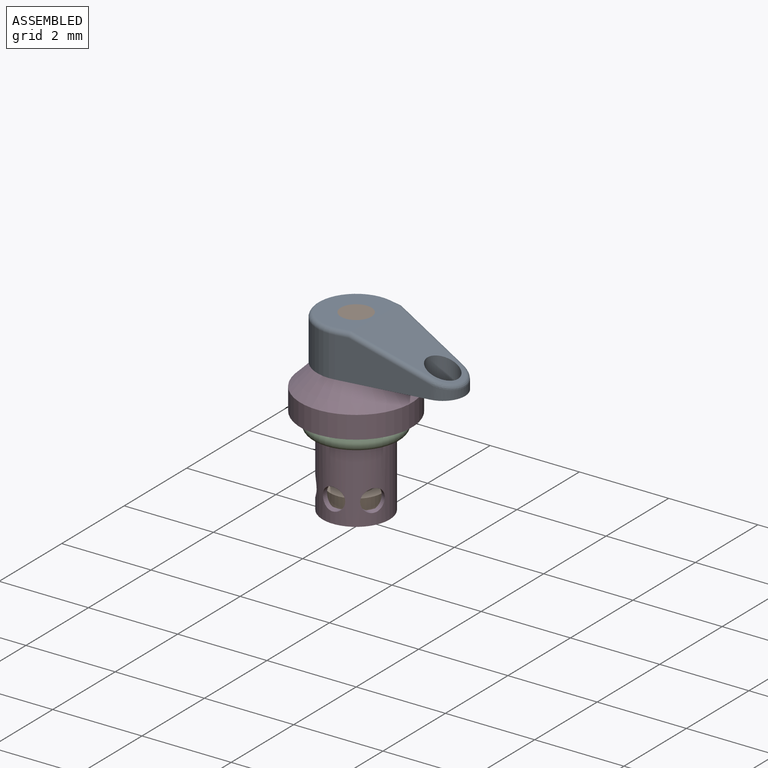
[diagram: assembled view]
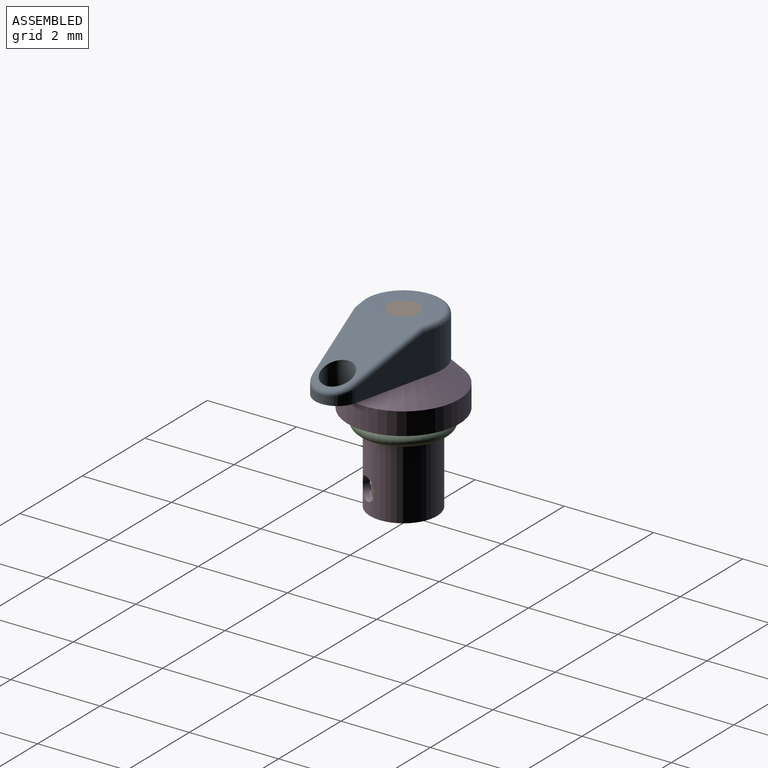
[diagram: assembled view, second angle]
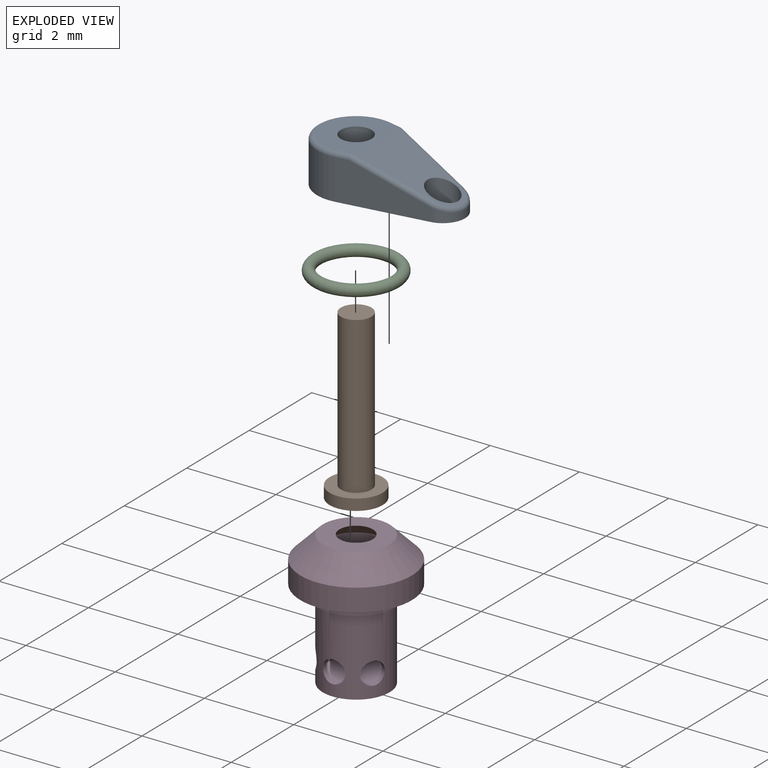
[diagram: exploded view]
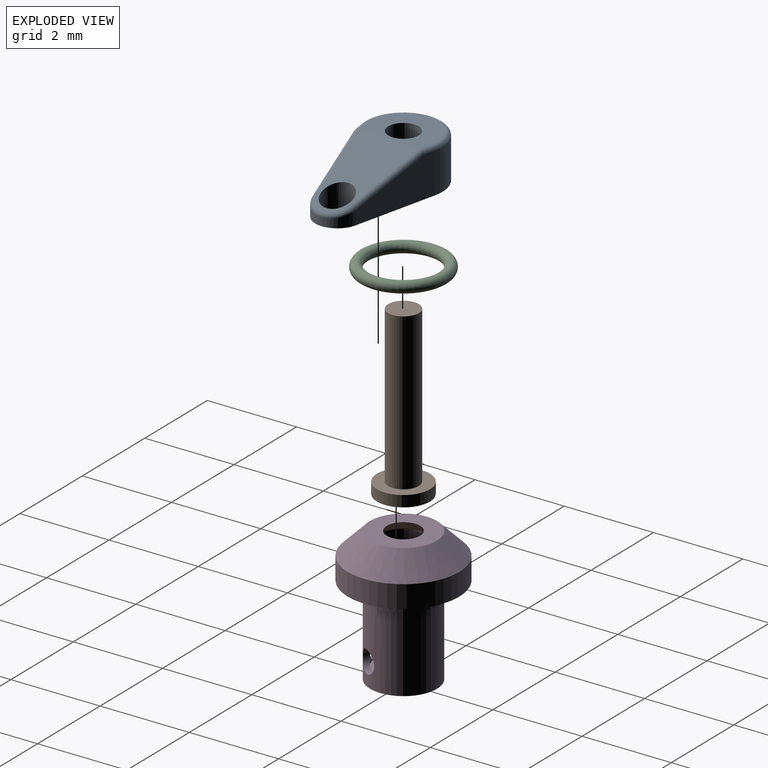
[diagram: exploded view, second angle]
ASSEMBLY  parts=4 mates=3
PART A: 18 faces, bbox 3.4x1.9x1 mm
  f0: plane 1.93x0.9mm, normal (0.19,-0.98,0), area 1.3mm2, adj f1,f4,f5,f9,f14
  f1: cylinder r=0.5mm len=0.98mm, axis (0,0,1), area 0.3mm2, adj f0,f2,f4,f16
  f2: plane 1.93x0.9mm, normal (0.19,0.98,0), area 1.3mm2, adj f1,f4,f5,f13,f17
  f3: cylinder r=0.34mm len=0.69mm, axis (0,0,1), area 0.9mm2, adj f4,f8
  f4: plane 3.38x1.75mm, normal (0,0,-1), area 3.7mm2, adj f0,f1,f2,f3,f5,f6
  f5: cylinder r=0.88mm len=1.75mm, axis (0,0,1), area 2.8mm2, adj f0,f2,f4,f10
  f6: cylinder r=0.34mm len=1mm, axis (0,0,1), area 2.2mm2, adj f4,f7
  f7: plane 1.55x1.2mm, normal (0,0,1), area 1.2mm2, adj f6,f9,f10,f12,f13
  f8: plane 1.98x1.42mm, normal (0.34,0,0.94), area 1.7mm2, adj f3,f12,f14,f16,f17
  f9: cylinder r=0.1mm len=0.3mm, axis (0.98,0.19,0), area 0mm2, adj f0,f7,f10,f11
  f10: torus R=0.78mm, axis (0,0,1), area 0.5mm2, adj f5,f7,f9,f13
  f11: sphere r=0.1mm, area 0mm2, adj f9,f12,f14
  f12: cylinder r=0.1mm len=1.42mm, axis (0,-1,0), area 0mm2, adj f7,f8,f11,f15
  f13: cylinder r=0.1mm len=0.3mm, axis (-0.98,0.19,0), area 0mm2, adj f2,f7,f10,f15
  f14: cylinder r=0.1mm len=1.67mm, axis (-0.92,-0.18,0.34), area 0.3mm2, adj f0,f8,f11,f16
  f15: sphere r=0.1mm, area 0mm2, adj f12,f13,f17
  f16: bspline ~0.98x0.41mm, area 0.2mm2, adj f1,f8,f14,f17
  f17: cylinder r=0.1mm len=1.67mm, axis (0.92,-0.18,-0.34), area 0.3mm2, adj f2,f8,f15,f16
PART B: 5 faces, bbox 1.2x1.2x3.8 mm
  f0: plane 1.19x1.19mm, normal (0,0,-1), area 1.1mm2, adj f1
  f1: cylinder r=0.59mm len=1.19mm, axis (0,0,-1), area 0.9mm2, adj f0,f2
  f2: plane 1.19x1.19mm, normal (0,0,1), area 0.7mm2, adj f1,f3
  f3: cylinder r=0.34mm len=3.5mm, axis (0,0,-1), area 7.6mm2, adj f2,f4
  f4: plane 0.69x0.69mm, normal (0,0,1), area 0.4mm2, adj f3
PART C: 1 faces, bbox 2.2x2.2x0.3 mm
  f0: torus R=0.88mm, axis (0,0,1), area 4.3mm2
PART D: 14 faces, bbox 2.5x2.5x3 mm
  f0: cylinder r=0.75mm len=1.75mm, axis (0,0,-1), area 7.7mm2, adj f2,f3,f11,f12,f13
  f1: cylinder r=0.62mm len=2.5mm, axis (0,0,-1), area 9.2mm2, adj f9,f10,f11,f12,f13
  f2: plane 1.5x1.5mm, normal (0,0,-1), area 1.8mm2, adj f0
  f3: plane 1.75x1.75mm, normal (0,0,-1), area 0.6mm2, adj f0,f4
  f4: cylinder r=0.88mm len=1.75mm, axis (0,0,-1), area 1.4mm2, adj f3,f5
  f5: plane 2.5x2.5mm, normal (0,0,-1), area 2.5mm2, adj f4,f6
  f6: cylinder r=1.25mm len=2.5mm, axis (0,0,-1), area 3.9mm2, adj f5,f7
  f7: cone r=0.75mm half-angle=45deg, axis (0,0,-1), area 4.4mm2, adj f6,f8
  f8: plane 1.5x1.5mm, normal (0,0,1), area 1.3mm2, adj f7,f9
  f9: cone r=0.38mm half-angle=45deg, axis (0,0,-1), area 1.1mm2, adj f1,f8
  f10: plane 1.25x1.25mm, normal (0,0,1), area 1.2mm2, adj f1
  f11: cylinder r=0.25mm len=0.5mm, axis (0,1,0), area 0.2mm2, adj f0,f1
  f12: cylinder r=0.25mm len=0.52mm, axis (0.87,0.5,0), area 0.2mm2, adj f0,f1
  f13: cylinder r=0.25mm len=0.52mm, axis (-0.87,0.5,0), area 0.2mm2, adj f0,f1
PLACE A rot(axis=(0,0,-1),2.3deg) t=(0,0,0)mm
PLACE B rot(axis=(0,0,-1),2.3deg) t=(0,0,0)mm
PLACE C rot(axis=(0,0,-1),90deg) t=(0,0,1.75)mm
PLACE D at identity fixed
MATE fastened A.f5 <-> B.f1  axis (0,0,1) through (0,0,4)mm
MATE fastened D.f0 <-> C.f0  axis (0,0,-1) through (0,0,1.75)mm
MATE cylindrical B.f1 <-> D.f0  axis (0,0,-1) through (0,0,0.25)mm
